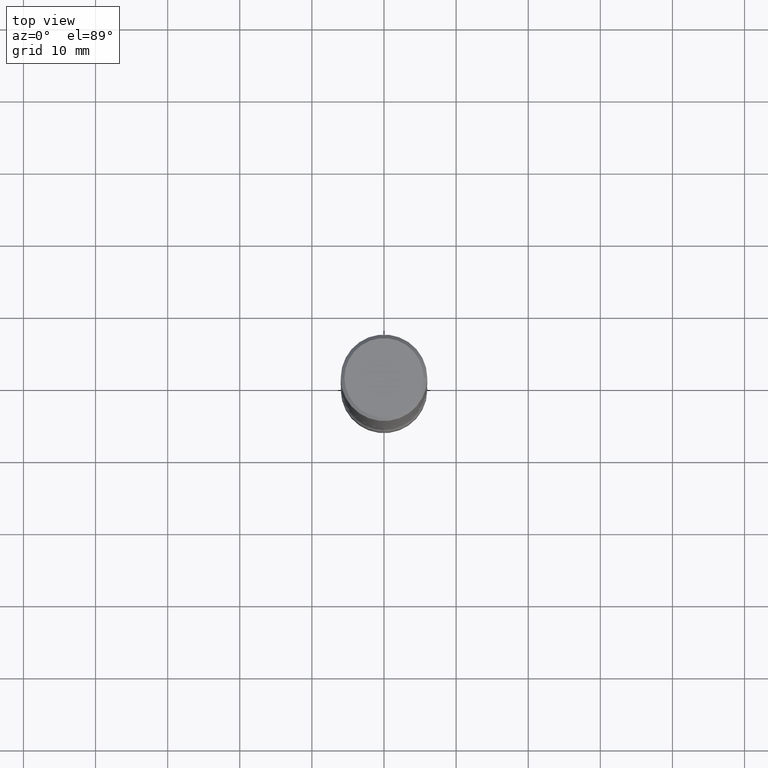
[diagram: clean part render]
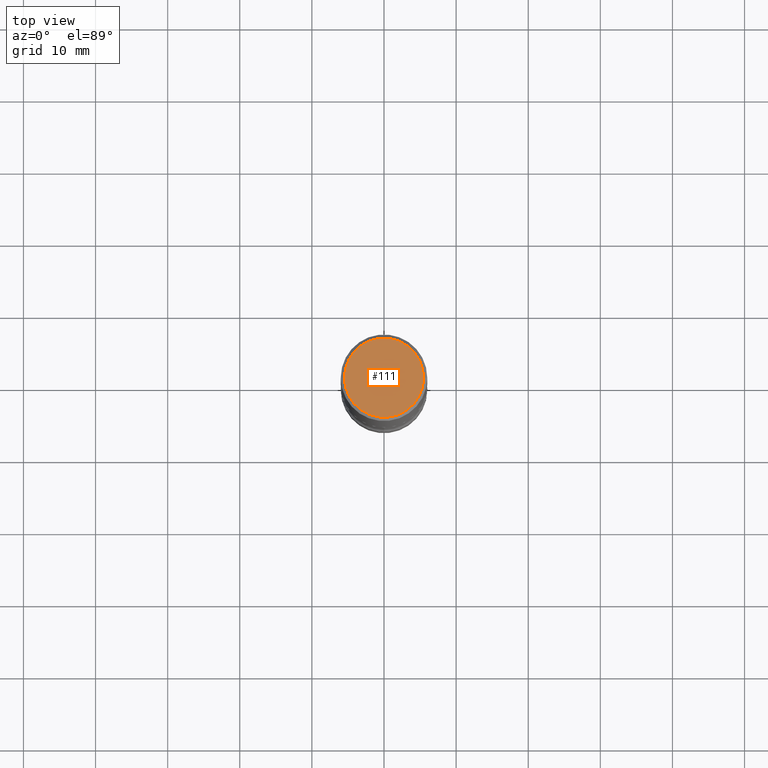
[diagram: same view with one face highlighted and labeled with its STEP entity id]
A machine part, top view. The second image highlights one B-rep face of the part: STEP entity #111.
In plain terms, the highlighted planar face has unit normal (0, -0, -1).
Its self-contained STEP definition (entity closure, byte-faithful):
#11 = EDGE_CURVE ( 'NONE', #421, #22, #177, .T. ) ;
#22 = VERTEX_POINT ( 'NONE', #339 ) ;
#50 = CARTESIAN_POINT ( 'NONE',  ( 4.175405657340879278E-46, -5.961372681521788801E-32, -1.707404996040164512E-17 ) ) ;
#92 = CARTESIAN_POINT ( 'NONE',  ( -0.2162000000000002531, 1.544631344304203944E-15, -1.707404996041232555E-17 ) ) ;
#111 = ADVANCED_FACE ( 'NONE', ( #220 ), #266, .F. ) ;
#169 = EDGE_CURVE ( 'NONE', #22, #421, #250, .T. ) ;
#177 = CIRCLE ( 'NONE', #538, 0.2162000000000002531 ) ;
#220 = FACE_OUTER_BOUND ( 'NONE', #417, .T. ) ;
#250 = CIRCLE ( 'NONE', #308, 0.2162000000000002531 ) ;
#266 = PLANE ( 'NONE',  #359 ) ;
#291 = DIRECTION ( 'NONE',  ( -2.445468806185136597E-29, 3.491481338843145583E-15, 1.000000000000000000 ) ) ;
#300 = DIRECTION ( 'NONE',  ( 1.000000000000000000, -6.982962677686266711E-15, 4.875778670202480222E-29 ) ) ;
#305 = DIRECTION ( 'NONE',  ( 2.438088387897960049E-29, -3.491481338843145188E-15, -1.000000000000000000 ) ) ;
#307 = DIRECTION ( 'NONE',  ( -2.445468806185136597E-29, 3.491481338843145583E-15, 1.000000000000000000 ) ) ;
#308 = AXIS2_PLACEMENT_3D ( 'NONE', #50, #307, #441 ) ;
#339 = CARTESIAN_POINT ( 'NONE',  ( 0.2162000000000002531, -1.586759460484353960E-15, -1.707404996039081677E-17 ) ) ;
#359 = AXIS2_PLACEMENT_3D ( 'NONE', #440, #305, #442 ) ;
#381 = CARTESIAN_POINT ( 'NONE',  ( 4.175405657340879278E-46, -5.961372681521788801E-32, -1.707404996040164512E-17 ) ) ;
#417 = EDGE_LOOP ( 'NONE', ( #466, #452 ) ) ;
#421 = VERTEX_POINT ( 'NONE', #92 ) ;
#440 = CARTESIAN_POINT ( 'NONE',  ( 1.509716530915772493E-15, 0.2162000000000002531, -7.633952904380896635E-16 ) ) ;
#441 = DIRECTION ( 'NONE',  ( 1.000000000000000000, -6.982962677686266711E-15, 4.875778670202480222E-29 ) ) ;
#442 = DIRECTION ( 'NONE',  ( -1.000000000000000000, 6.982962677686265922E-15, -4.876176775795935793E-29 ) ) ;
#452 = ORIENTED_EDGE ( 'NONE', *, *, #169, .T. ) ;
#466 = ORIENTED_EDGE ( 'NONE', *, *, #11, .T. ) ;
#538 = AXIS2_PLACEMENT_3D ( 'NONE', #381, #291, #300 ) ;